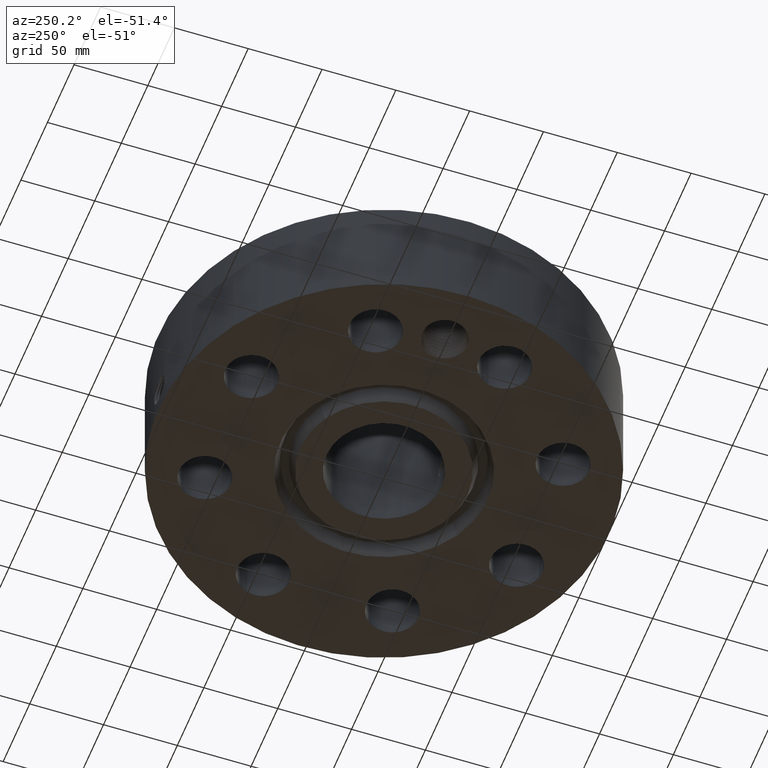
[diagram: clean part render]
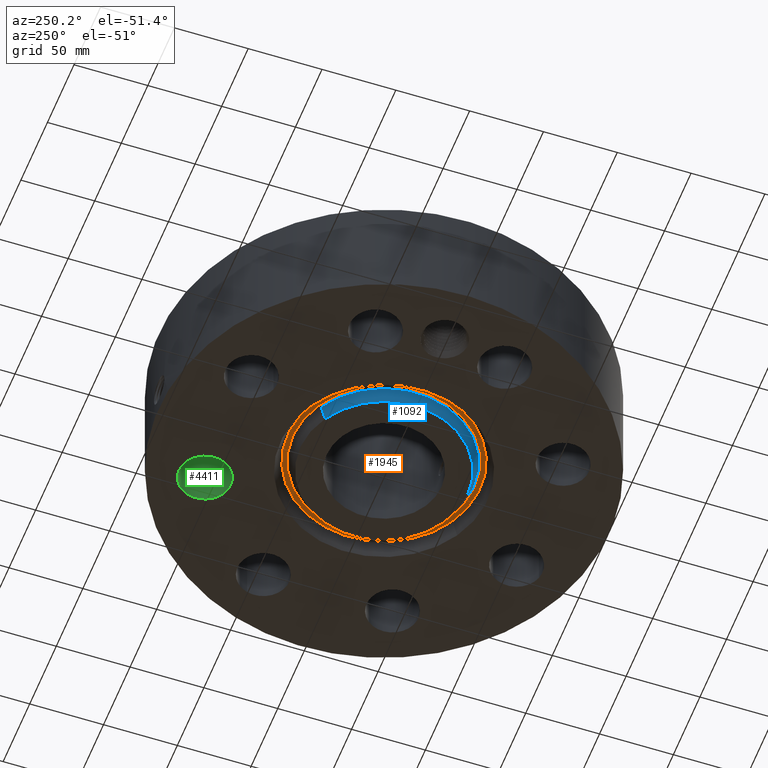
[diagram: same view with three faces highlighted in distinct colors, each labeled with its STEP entity id]
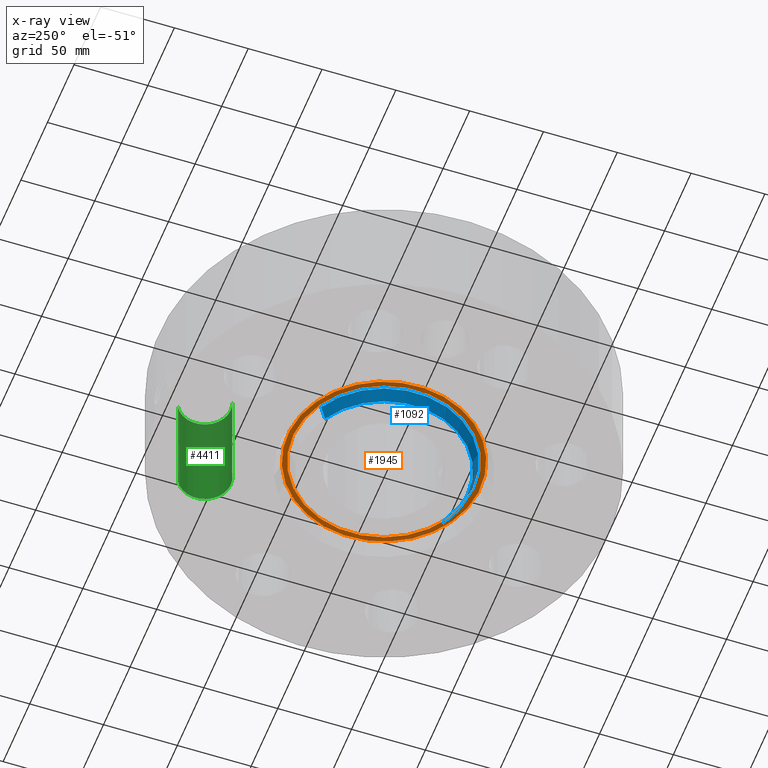
[diagram: x-ray of the same camera — body ghosted, the three highlighted faces saturated]
A machine part, auxiliary view with three faces highlighted in distinct colors.
The next image is the same camera in x-ray (body ghosted, the three faces saturated) — at least one of them is partly hidden behind the body in this view.
Their STEP definitions:

[orange] entity #1945 — the highlighted planar face has unit normal (0, 0, 1).
#1425=AXIS2_PLACEMENT_3D('Circle Axis2P3D',#1423,#1424,$) ;
#1451=AXIS2_PLACEMENT_3D('Circle Axis2P3D',#1449,#1450,$) ;
#1921=AXIS2_PLACEMENT_3D('Plane Axis2P3D',#1918,#1919,#1920) ;
#1925=AXIS2_PLACEMENT_3D('Circle Axis2P3D',#1923,#1924,$) ;
#1934=AXIS2_PLACEMENT_3D('Circle Axis2P3D',#1932,#1933,$) ;
#1423=CARTESIAN_POINT('Axis2P3D Location',(0.,0.,0.375000000002)) ;
#1427=CARTESIAN_POINT('Vertex',(1.16662988179,-2.13550167439,0.375000000002)) ;
#1429=CARTESIAN_POINT('Vertex',(-1.16662988179,2.13550167439,0.375000000002)) ;
#1449=CARTESIAN_POINT('Axis2P3D Location',(0.,0.,0.375000000002)) ;
#1918=CARTESIAN_POINT('Axis2P3D Location',(0.,2.43339118976,0.375000000001)) ;
#1923=CARTESIAN_POINT('Axis2P3D Location',(0.,0.,0.375000000001)) ;
#1927=CARTESIAN_POINT('Vertex',(-1.23049781125,2.25241113508,0.375000000001)) ;
#1929=CARTESIAN_POINT('Vertex',(1.23049781125,-2.25241113508,0.375000000001)) ;
#1932=CARTESIAN_POINT('Axis2P3D Location',(0.,0.,0.375000000001)) ;
#1424=DIRECTION('Axis2P3D Direction',(0.,0.,0.0393700787402)) ;
#1450=DIRECTION('Axis2P3D Direction',(0.,0.,0.0393700787402)) ;
#1919=DIRECTION('Axis2P3D Direction',(0.,0.,0.0393700787402)) ;
#1920=DIRECTION('Axis2P3D XDirection',(0.0393700787402,0.,0.)) ;
#1924=DIRECTION('Axis2P3D Direction',(0.,0.,0.0393700787402)) ;
#1933=DIRECTION('Axis2P3D Direction',(0.,0.,0.0393700787402)) ;
#1938=ORIENTED_EDGE('',*,*,#1931,.F.) ;
#1939=ORIENTED_EDGE('',*,*,#1936,.F.) ;
#1942=ORIENTED_EDGE('',*,*,#1431,.T.) ;
#1943=ORIENTED_EDGE('',*,*,#1453,.T.) ;
#1944=FACE_BOUND('',#1941,.T.) ;
#1945=ADVANCED_FACE('PartBody',(#1940,#1944),#1922,.F.) ;
#1426=CIRCLE('generated circle',#1425,2.43339118976) ;
#1452=CIRCLE('generated circle',#1451,2.43339118976) ;
#1926=CIRCLE('generated circle',#1925,2.56660881026) ;
#1935=CIRCLE('generated circle',#1934,2.56660881026) ;
#1431=EDGE_CURVE('',#1428,#1430,#1426,.T.) ;
#1453=EDGE_CURVE('',#1430,#1428,#1452,.T.) ;
#1931=EDGE_CURVE('',#1928,#1930,#1926,.T.) ;
#1936=EDGE_CURVE('',#1930,#1928,#1935,.T.) ;
#1937=EDGE_LOOP('',(#1938,#1939)) ;
#1941=EDGE_LOOP('',(#1942,#1943)) ;
#1940=FACE_OUTER_BOUND('',#1937,.T.) ;
#1922=PLANE('',#1921) ;
#1428=VERTEX_POINT('',#1427) ;
#1430=VERTEX_POINT('',#1429) ;
#1928=VERTEX_POINT('',#1927) ;
#1930=VERTEX_POINT('',#1929) ;

[blue] entity #1092 — the highlighted conical surface has half-angle 23 deg.
#611=AXIS2_PLACEMENT_3D('Circle Axis2P3D',#609,#610,$) ;
#1053=AXIS2_PLACEMENT_3D('Cone Axis2P3D',#1050,#1051,#1052) ;
#1083=AXIS2_PLACEMENT_3D('Circle Axis2P3D',#1081,#1082,$) ;
#604=CARTESIAN_POINT('Vertex',(-1.07127636602,1.96095823455,6.99353086378E-017)) ;
#606=CARTESIAN_POINT('Vertex',(1.07127636602,-1.96095823455,0.)) ;
#609=CARTESIAN_POINT('Axis2P3D Location',(2.79741234551E-016,-2.79741234551E-016,0.)) ;
#1050=CARTESIAN_POINT('Axis2P3D Location',(0.,0.,-0.0600000000002)) ;
#1055=CARTESIAN_POINT('Line Origine',(-1.10571371785,2.02399538425,0.169221933855)) ;
#1059=CARTESIAN_POINT('Vertex',(-1.14015106968,2.08703253394,0.338443867711)) ;
#1066=CARTESIAN_POINT('Vertex',(1.14015106968,-2.08703253394,0.338443867711)) ;
#1069=CARTESIAN_POINT('Line Origine',(1.10571371785,-2.02399538425,0.169221933855)) ;
#1081=CARTESIAN_POINT('Axis2P3D Location',(0.,0.,0.338443867711)) ;
#610=DIRECTION('Axis2P3D Direction',(0.,0.,-0.0393700787402)) ;
#1051=DIRECTION('Axis2P3D Direction',(0.,0.,0.0393700787402)) ;
#1052=DIRECTION('Axis2P3D XDirection',(-0.0188750212049,0.0345504945626,0.)) ;
#1056=DIRECTION('Vector Direction',(-0.00737505833565,0.0134999537303,0.0362403485611)) ;
#1070=DIRECTION('Vector Direction',(0.00737505833565,-0.0134999537303,0.0362403485611)) ;
#1082=DIRECTION('Axis2P3D Direction',(0.,0.,0.0393700787402)) ;
#1057=VECTOR('Line Direction',#1056,0.0393700787402) ;
#1071=VECTOR('Line Direction',#1070,0.0393700787402) ;
#1087=ORIENTED_EDGE('',*,*,#1073,.F.) ;
#1088=ORIENTED_EDGE('',*,*,#1085,.F.) ;
#1089=ORIENTED_EDGE('',*,*,#1061,.T.) ;
#1090=ORIENTED_EDGE('',*,*,#613,.F.) ;
#1092=ADVANCED_FACE('PartBody',(#1091),#1054,.T.) ;
#612=CIRCLE('generated circle',#611,2.23450000001) ;
#1084=CIRCLE('generated circle',#1083,2.37816089855) ;
#1054=CONICAL_SURFACE('Cone',#1053,2.20903151104,0.401425727959) ;
#613=EDGE_CURVE('',#607,#605,#612,.T.) ;
#1061=EDGE_CURVE('',#1060,#605,#1058,.F.) ;
#1073=EDGE_CURVE('',#1067,#607,#1072,.F.) ;
#1085=EDGE_CURVE('',#1060,#1067,#1084,.T.) ;
#1086=EDGE_LOOP('',(#1087,#1088,#1089,#1090)) ;
#1091=FACE_OUTER_BOUND('',#1086,.T.) ;
#1058=LINE('Line',#1055,#1057) ;
#1072=LINE('Line',#1069,#1071) ;
#605=VERTEX_POINT('',#604) ;
#607=VERTEX_POINT('',#606) ;
#1060=VERTEX_POINT('',#1059) ;
#1067=VERTEX_POINT('',#1066) ;

[green] entity #4411 — the highlighted cylindrical surface (edge-blend (fillet) strip) has radius 17.526 mm, axis along (0, 0, -1).
#3099=AXIS2_PLACEMENT_3D('Circle Axis2P3D',#3097,#3098,$) ;
#4372=AXIS2_PLACEMENT_3D('Cylinder Axis2P3D',#4369,#4370,#4371) ;
#4402=AXIS2_PLACEMENT_3D('Circle Axis2P3D',#4400,#4401,$) ;
#3097=CARTESIAN_POINT('Axis2P3D Location',(1.72207544565,4.15745789632,2.99500000001)) ;
#3101=CARTESIAN_POINT('Vertex',(2.05287906729,4.76298986402,2.99500000001)) ;
#3103=CARTESIAN_POINT('Vertex',(1.39127182401,3.55192592861,2.99500000001)) ;
#4369=CARTESIAN_POINT('Axis2P3D Location',(1.72207544565,4.15745789632,2.99106299214)) ;
#4374=CARTESIAN_POINT('Line Origine',(1.39127182401,3.55192592861,1.49750000001)) ;
#4378=CARTESIAN_POINT('Vertex',(1.39127182401,3.55192592861,0.)) ;
#4385=CARTESIAN_POINT('Vertex',(2.05287906729,4.76298986402,0.)) ;
#4388=CARTESIAN_POINT('Line Origine',(2.05287906729,4.76298986402,1.49750000001)) ;
#4400=CARTESIAN_POINT('Axis2P3D Location',(1.72207544565,4.15745789632,0.)) ;
#3098=DIRECTION('Axis2P3D Direction',(0.,0.,-0.0393700787402)) ;
#4370=DIRECTION('Axis2P3D Direction',(0.,0.,-0.0393700787402)) ;
#4371=DIRECTION('Axis2P3D XDirection',(0.0188750212049,0.0345504945626,0.)) ;
#4375=DIRECTION('Vector Direction',(0.,0.,-0.0393700787402)) ;
#4389=DIRECTION('Vector Direction',(0.,0.,-0.0393700787402)) ;
#4401=DIRECTION('Axis2P3D Direction',(0.,0.,-0.0393700787402)) ;
#4376=VECTOR('Line Direction',#4375,0.0393700787402) ;
#4390=VECTOR('Line Direction',#4389,0.0393700787402) ;
#4406=ORIENTED_EDGE('',*,*,#4392,.F.) ;
#4407=ORIENTED_EDGE('',*,*,#4404,.T.) ;
#4408=ORIENTED_EDGE('',*,*,#4380,.T.) ;
#4409=ORIENTED_EDGE('',*,*,#3105,.F.) ;
#4411=ADVANCED_FACE('PartBody',(#4410),#4373,.F.) ;
#3100=CIRCLE('generated circle',#3099,0.690000000003) ;
#4403=CIRCLE('generated circle',#4402,0.690000000003) ;
#4373=CYLINDRICAL_SURFACE('generated cylinder',#4372,0.690000000003) ;
#3105=EDGE_CURVE('',#3102,#3104,#3100,.T.) ;
#4380=EDGE_CURVE('',#4379,#3104,#4377,.F.) ;
#4392=EDGE_CURVE('',#4386,#3102,#4391,.F.) ;
#4404=EDGE_CURVE('',#4386,#4379,#4403,.T.) ;
#4405=EDGE_LOOP('',(#4406,#4407,#4408,#4409)) ;
#4410=FACE_OUTER_BOUND('',#4405,.T.) ;
#4377=LINE('Line',#4374,#4376) ;
#4391=LINE('Line',#4388,#4390) ;
#3102=VERTEX_POINT('',#3101) ;
#3104=VERTEX_POINT('',#3103) ;
#4379=VERTEX_POINT('',#4378) ;
#4386=VERTEX_POINT('',#4385) ;